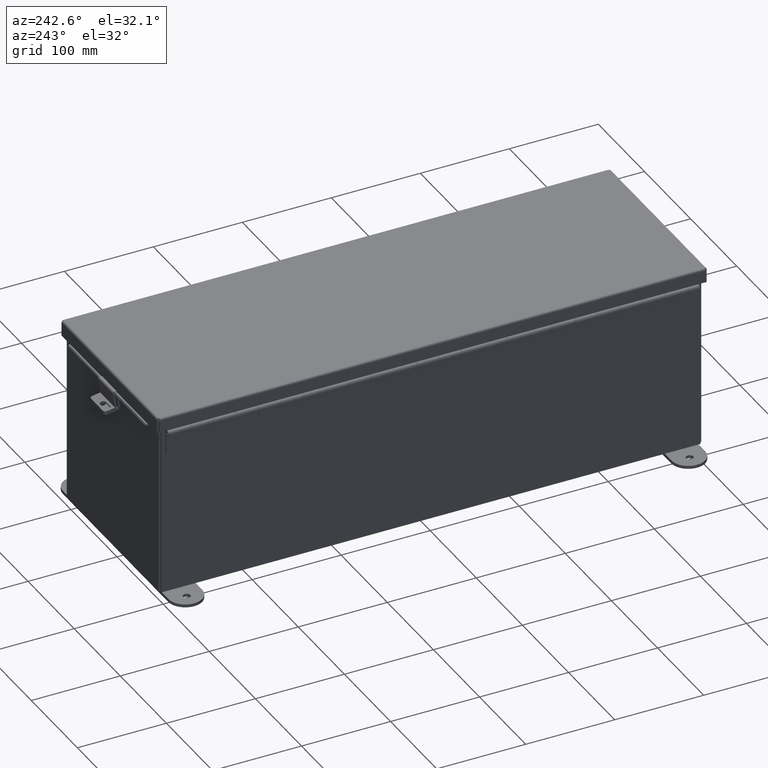
[diagram: clean part render]
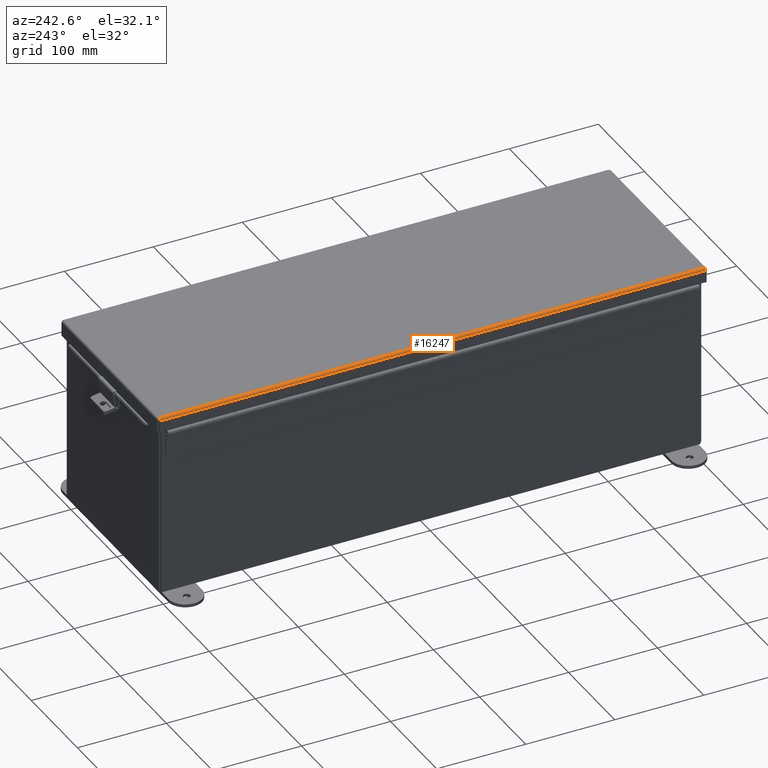
[diagram: same view with one face highlighted and labeled with its STEP entity id]
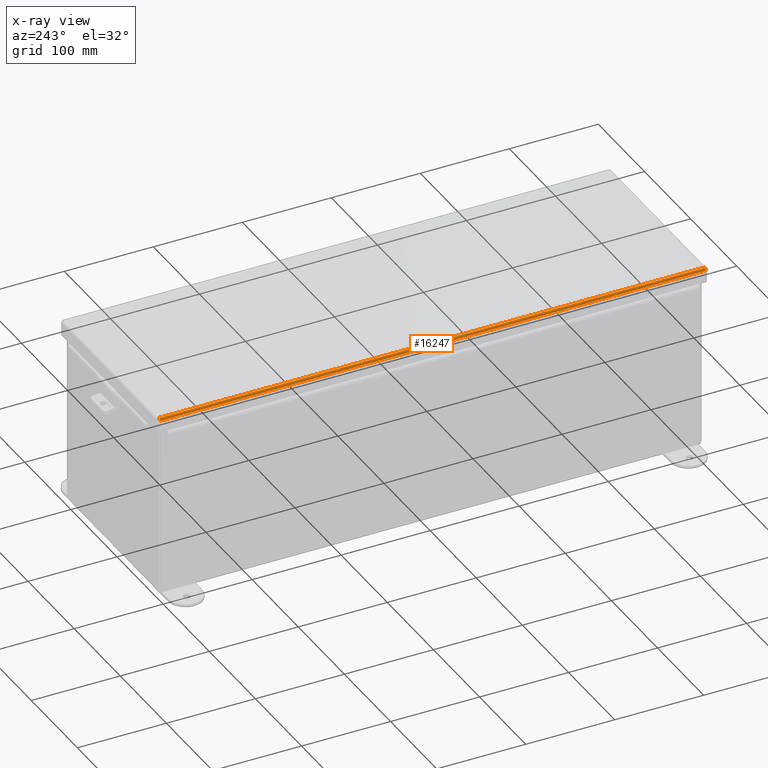
[diagram: x-ray of the same camera — body ghosted, the highlighted face saturated]
A machine part, auxiliary view. The second image highlights one B-rep face of the part: STEP entity #16247.
The next image is the same camera in x-ray: the body ghosted, the highlighted face saturated — about 0% of this face is hidden behind the body in this view.
In plain terms, the highlighted cylindrical surface (edge-blend (fillet) strip) has radius 2.2276 mm, axis along (0, 1, 0).
Its self-contained STEP definition (entity closure, byte-faithful):
#192 = CARTESIAN_POINT ( 'NONE',  ( 4.153967403743811500, -12.07349077682344400, -0.009955289458309073800 ) ) ;
#472 = FACE_OUTER_BOUND ( 'NONE', #20271, .T. ) ;
#1734 = CARTESIAN_POINT ( 'NONE',  ( 4.080029903154993100, 12.06904407768233900, -0.07469999999999998900 ) ) ;
#1890 = CARTESIAN_POINT ( 'NONE',  ( 4.080029903154993100, -12.06904407768234200, -0.07469999999999998900 ) ) ;
#1965 = CARTESIAN_POINT ( 'NONE',  ( 4.156250000000000000, -12.07447893218813200, 0.01300000000000010700 ) ) ;
#2083 = VECTOR ( 'NONE', #4730, 39.37007874015748100 ) ;
#4730 = DIRECTION ( 'NONE',  ( -1.049351150785308100E-032, -1.000000000000000000, -0.0000000000000000000 ) ) ;
#4920 = CARTESIAN_POINT ( 'NONE',  ( 4.156250000000000000, -12.07447893218813200, 0.01300000000000010700 ) ) ;
#5136 = ORIENTED_EDGE ( 'NONE', *, *, #6039, .T. ) ;
#5186 = ORIENTED_EDGE ( 'NONE', *, *, #10382, .F. ) ;
#5190 = CARTESIAN_POINT ( 'NONE',  ( 4.156250000000000900, 12.07398485450578800, 0.001520096845007071300 ) ) ;
#5468 = VERTEX_POINT ( 'NONE', #11871 ) ;
#6039 = EDGE_CURVE ( 'NONE', #5468, #17282, #20758, .T. ) ;
#6086 = VECTOR ( 'NONE', #9152, 39.37007874015748100 ) ;
#7166 = CARTESIAN_POINT ( 'NONE',  ( 4.091505289458309500, -12.06953815536469000, -0.07241740374381128200 ) ) ;
#7792 = ORIENTED_EDGE ( 'NONE', *, *, #9670, .F. ) ;
#8217 = VERTEX_POINT ( 'NONE', #20214 ) ;
#8476 = VERTEX_POINT ( 'NONE', #13827 ) ;
#8728 = CARTESIAN_POINT ( 'NONE',  ( 4.145181066258667900, 12.07250262145875300, -0.03116738457852801000 ) ) ;
#8938 = CARTESIAN_POINT ( 'NONE',  ( 4.122445747341800800, -12.07102038841172100, -0.05713078207832046600 ) ) ;
#9152 = DIRECTION ( 'NONE',  ( -1.049351150785308100E-032, -1.000000000000000000, -0.0000000000000000000 ) ) ;
#9670 = EDGE_CURVE ( 'NONE', #5468, #8476, #11742, .T. ) ;
#10382 = EDGE_CURVE ( 'NONE', #8476, #8217, #20076, .T. ) ;
#10476 = CARTESIAN_POINT ( 'NONE',  ( 4.122445747341800800, 12.07102038841172100, -0.05713078207832046600 ) ) ;
#10616 = CARTESIAN_POINT ( 'NONE',  ( 4.068549999999995700, -12.06855000000000200, -0.07470000000000452700 ) ) ;
#10697 = CARTESIAN_POINT ( 'NONE',  ( 4.145181066258668800, -12.07250262145875300, -0.03116738457852802300 ) ) ;
#11742 = B_SPLINE_CURVE_WITH_KNOTS ( 'NONE', 3,
 ( #12139, #5190, #19212, #8728, #20981, #10476, #22790, #12219, #1734, #14003 ),
 .UNSPECIFIED., .F., .F.,
 ( 4, 2, 2, 2, 4 ),
 ( 0.0000000000000000000, 0.2500000000000000000, 0.5000000000000000000, 0.7500000000000000000, 1.000000000000000000 ),
 .UNSPECIFIED. ) ;
#11837 = AXIS2_PLACEMENT_3D ( 'NONE', #22788, #12614, #21391 ) ;
#11871 = CARTESIAN_POINT ( 'NONE',  ( 4.156250000000000000, 12.07447893218813200, 0.01300000000000010700 ) ) ;
#12139 = CARTESIAN_POINT ( 'NONE',  ( 4.156250000000000000, 12.07447893218813200, 0.01300000000000010700 ) ) ;
#12219 = CARTESIAN_POINT ( 'NONE',  ( 4.091505289458308600, 12.06953815536468600, -0.07241740374381128200 ) ) ;
#12439 = CARTESIAN_POINT ( 'NONE',  ( 4.156250000000000000, -12.07398485450578600, 0.001520096845007072400 ) ) ;
#12614 = DIRECTION ( 'NONE',  ( 1.049351150785308200E-032, 1.000000000000000000, 0.0000000000000000000 ) ) ;
#13362 = CYLINDRICAL_SURFACE ( 'NONE', #11837, 0.08770000000000026400 ) ;
#13568 = ORIENTED_EDGE ( 'NONE', *, *, #14280, .F. ) ;
#13827 = CARTESIAN_POINT ( 'NONE',  ( 4.068549999999994800, 12.06854999999999500, -0.07470000000000015500 ) ) ;
#14003 = CARTESIAN_POINT ( 'NONE',  ( 4.068549999999994800, 12.06854999999999500, -0.07470000000000015500 ) ) ;
#14280 = EDGE_CURVE ( 'NONE', #8217, #17282, #22339, .T. ) ;
#15237 = CARTESIAN_POINT ( 'NONE',  ( 4.156250000000000000, -12.15625000000000000, 0.01300000000000010700 ) ) ;
#16247 = ADVANCED_FACE ( 'NONE', ( #472 ), #13362, .T. ) ;
#17282 = VERTEX_POINT ( 'NONE', #4920 ) ;
#17858 = CARTESIAN_POINT ( 'NONE',  ( 4.068549999999994800, 12.07447893218813200, -0.07470000000000015500 ) ) ;
#19212 = CARTESIAN_POINT ( 'NONE',  ( 4.153967403743812300, 12.07349077682344400, -0.009955289458309070400 ) ) ;
#19448 = CARTESIAN_POINT ( 'NONE',  ( 4.112717384578527200, -12.07052631072937900, -0.06363106625866843400 ) ) ;
#20076 = LINE ( 'NONE', #17858, #6086 ) ;
#20214 = CARTESIAN_POINT ( 'NONE',  ( 4.068549999999995700, -12.06855000000000200, -0.07470000000000452700 ) ) ;
#20271 = EDGE_LOOP ( 'NONE', ( #5186, #7792, #5136, #13568 ) ) ;
#20758 = LINE ( 'NONE', #15237, #2083 ) ;
#20981 = CARTESIAN_POINT ( 'NONE',  ( 4.138680782078320200, 12.07200854377640900, -0.04089574734180014700 ) ) ;
#21211 = CARTESIAN_POINT ( 'NONE',  ( 4.138680782078321100, -12.07200854377641300, -0.04089574734180014700 ) ) ;
#21391 = DIRECTION ( 'NONE',  ( 1.000000000000000000, 0.0000000000000000000, -3.966747639032868000E-015 ) ) ;
#22339 = B_SPLINE_CURVE_WITH_KNOTS ( 'NONE', 3,
 ( #10616, #1890, #7166, #19448, #8938, #21211, #10697, #192, #12439, #1965 ),
 .UNSPECIFIED., .F., .F.,
 ( 4, 2, 2, 2, 4 ),
 ( 0.0000000000000000000, 0.2500000000000000000, 0.5000000000000000000, 0.7500000000000000000, 1.000000000000000000 ),
 .UNSPECIFIED. ) ;
#22788 = CARTESIAN_POINT ( 'NONE',  ( 4.068550000000000100, 12.07447893218813200, 0.01300000000000010700 ) ) ;
#22790 = CARTESIAN_POINT ( 'NONE',  ( 4.112717384578528100, 12.07052631072937400, -0.06363106625866843400 ) ) ;